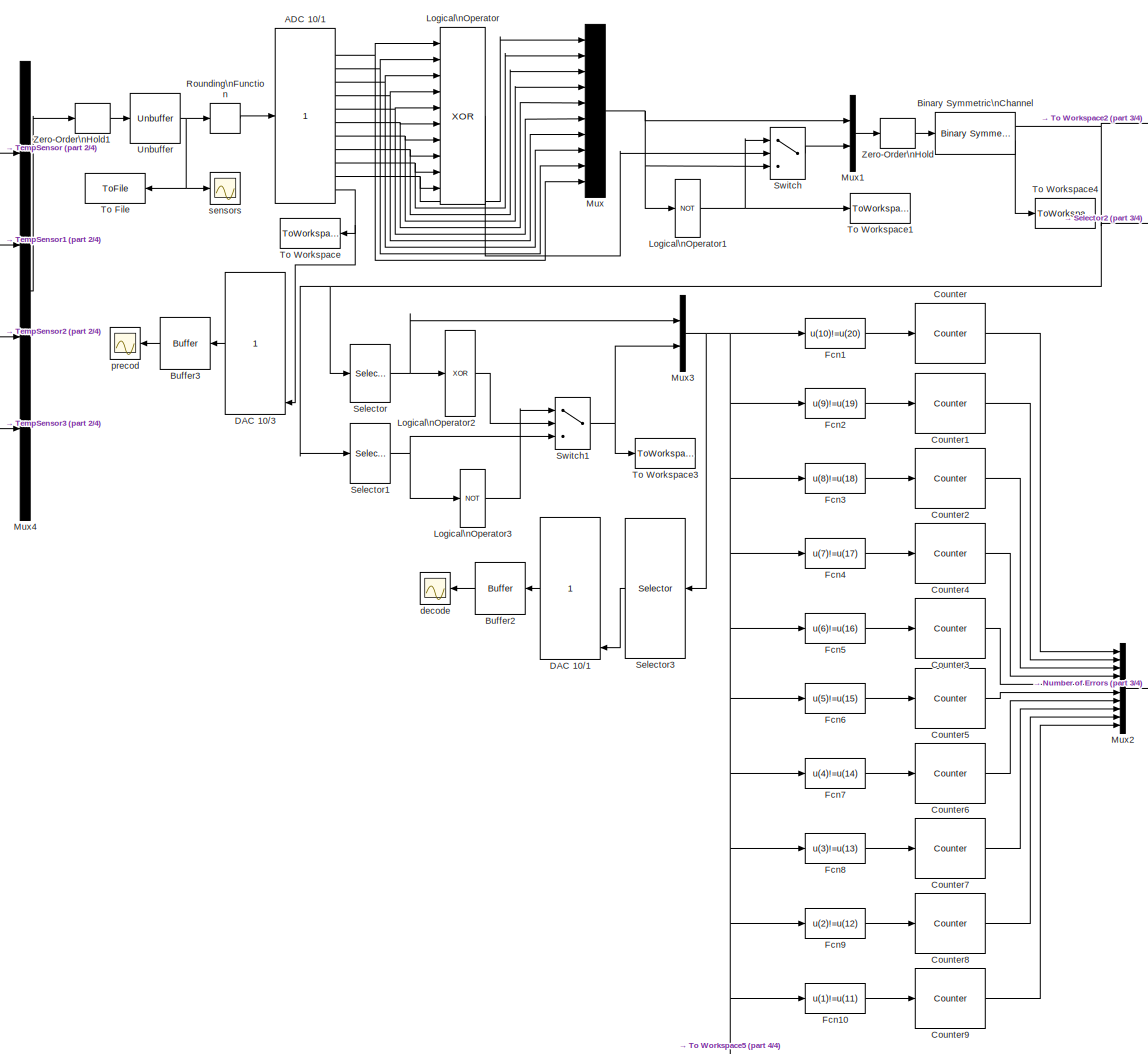
[diagram: root canvas - part 1/4, most of the canvas]
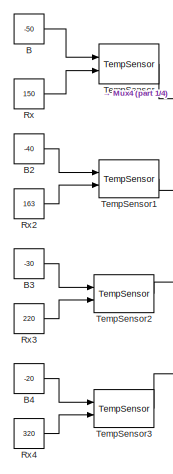
[diagram: root canvas - part 2/4, top left region]
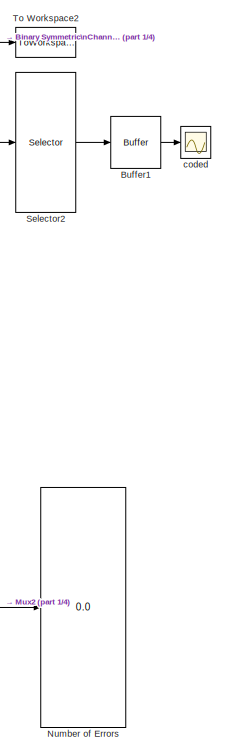
[diagram: root canvas - part 3/4, middle right region]
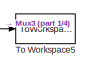
[diagram: root canvas - part 4/4, bottom center region]
MODEL UK_UD
KIND model
BLOCK [Reference] ADC 10//1  REF=KP/ADC 10//1
  Ports = [1, 12]
  SID = 48
  SourceBlock = KP/ADC 10//1
  SourceType = SubSystem
BLOCK [Constant] B
  SID = 2
  Value = -50
BLOCK [Constant] B2
  SID = 50
  SampleTime = 0
  Value = -40
BLOCK [Constant] B3
  SID = 51
  SampleTime = 0
  Value = -30
BLOCK [Constant] B4
  SID = 52
  SampleTime = 0
  Value = -20
BLOCK [Reference] Binary Symmetric\nChannel  REF=commchan3/Binary Symmetric\nChannel
  E = on
  P = 0.06
  Ports = [1, 2]
  SID = 3
  SourceBlock = commchan3/Binary Symmetric\nChannel
  SourceType = Binary Symmetric Channel
  outDtype = double
  s = 2137
BLOCK [Buffer] Buffer1
  N = 4
  OutputFrames = off
  SID = 85
  TreatMby1Signals = One channel
BLOCK [Buffer] Buffer2
  N = 4
  OutputFrames = off
  SID = 77
  TreatMby1Signals = One channel
BLOCK [Buffer] Buffer3
  N = 4
  OutputFrames = off
  SID = 90
  TreatMby1Signals = One channel
BLOCK [Reference] Counter  REF=dspswit3/Counter
  CntDtype = double
  CountEvent = Non-zero sample
  CounterSize = User defined
  Direction = Up
  HitDtype = Logical
  HitValue = 32
  InitialCount = 0
  MaxCount = 255
  Output = Count
  Ports = [1, 1]
  ResetInput = off
  SID = 4
  SamplesPerFrame = 1
  SourceBlock = dspswit3/Counter
  SourceType = Counter
  Ts = 1
BLOCK [Reference] Counter1  REF=dspswit3/Counter
  CntDtype = double
  CountEvent = Non-zero sample
  CounterSize = User defined
  Direction = Up
  HitDtype = Logical
  HitValue = 32
  InitialCount = 0
  MaxCount = 255
  Output = Count
  Ports = [1, 1]
  ResetInput = off
  SID = 5
  SamplesPerFrame = 1
  SourceBlock = dspswit3/Counter
  SourceType = Counter
  Ts = 1
BLOCK [Reference] Counter2  REF=dspswit3/Counter
  CntDtype = double
  CountEvent = Non-zero sample
  CounterSize = User defined
  Direction = Up
  HitDtype = Logical
  HitValue = 32
  InitialCount = 0
  MaxCount = 255
  Output = Count
  Ports = [1, 1]
  ResetInput = off
  SID = 6
  SamplesPerFrame = 1
  SourceBlock = dspswit3/Counter
  SourceType = Counter
  Ts = 1
BLOCK [Reference] Counter3  REF=dspswit3/Counter
  CntDtype = double
  CountEvent = Non-zero sample
  CounterSize = User defined
  Direction = Up
  HitDtype = Logical
  HitValue = 32
  InitialCount = 0
  MaxCount = 255
  Output = Count
  Ports = [1, 1]
  ResetInput = off
  SID = 7
  SamplesPerFrame = 1
  SourceBlock = dspswit3/Counter
  SourceType = Counter
  Ts = 1
BLOCK [Reference] Counter4  REF=dspswit3/Counter
  CntDtype = double
  CountEvent = Non-zero sample
  CounterSize = User defined
  Direction = Up
  HitDtype = Logical
  HitValue = 32
  InitialCount = 0
  MaxCount = 255
  Output = Count
  Ports = [1, 1]
  ResetInput = off
  SID = 8
  SamplesPerFrame = 1
  SourceBlock = dspswit3/Counter
  SourceType = Counter
  Ts = 1
BLOCK [Reference] Counter5  REF=dspswit3/Counter
  CntDtype = double
  CountEvent = Non-zero sample
  CounterSize = User defined
  Direction = Up
  HitDtype = Logical
  HitValue = 32
  InitialCount = 0
  MaxCount = 255
  Output = Count
  Ports = [1, 1]
  ResetInput = off
  SID = 9
  SamplesPerFrame = 1
  SourceBlock = dspswit3/Counter
  SourceType = Counter
  Ts = 1
BLOCK [Reference] Counter6  REF=dspswit3/Counter
  CntDtype = double
  CountEvent = Non-zero sample
  CounterSize = User defined
  Direction = Up
  HitDtype = Logical
  HitValue = 32
  InitialCount = 0
  MaxCount = 255
  Output = Count
  Ports = [1, 1]
  ResetInput = off
  SID = 10
  SamplesPerFrame = 1
  SourceBlock = dspswit3/Counter
  SourceType = Counter
  Ts = 1
BLOCK [Reference] Counter7  REF=dspswit3/Counter
  CntDtype = double
  CountEvent = Non-zero sample
  CounterSize = User defined
  Direction = Up
  HitDtype = Logical
  HitValue = 32
  InitialCount = 0
  MaxCount = 255
  Output = Count
  Ports = [1, 1]
  ResetInput = off
  SID = 11
  SamplesPerFrame = 1
  SourceBlock = dspswit3/Counter
  SourceType = Counter
  Ts = 1
BLOCK [Reference] Counter8  REF=dspswit3/Counter
  CntDtype = double
  CountEvent = Non-zero sample
  CounterSize = User defined
  Direction = Up
  HitDtype = Logical
  HitValue = 32
  InitialCount = 0
  MaxCount = 255
  Output = Count
  Ports = [1, 1]
  ResetInput = off
  SID = 12
  SamplesPerFrame = 1
  SourceBlock = dspswit3/Counter
  SourceType = Counter
  Ts = 1
BLOCK [Reference] Counter9  REF=dspswit3/Counter
  CntDtype = double
  CountEvent = Non-zero sample
  CounterSize = User defined
  Direction = Up
  HitDtype = Logical
  HitValue = 32
  InitialCount = 0
  MaxCount = 255
  Output = Count
  Ports = [1, 1]
  ResetInput = off
  SID = 13
  SamplesPerFrame = 1
  SourceBlock = dspswit3/Counter
  SourceType = Counter
  Ts = 1
BLOCK [Reference] DAC 10//1  REF=KP/DAC 10//1
  Ports = [11, 1]
  SID = 78
  SourceBlock = KP/DAC 10//1
  SourceType = SubSystem
BLOCK [Reference] DAC 10//3  REF=KP/DAC 10//1
  Ports = [11, 1]
  SID = 91
  SourceBlock = KP/DAC 10//1
  SourceType = SubSystem
BLOCK [Fcn] Fcn1
  Expr = u(10)!=u(20)
  SID = 19
BLOCK [Fcn] Fcn10
  Expr = u(1)!=u(11)
  SID = 15
BLOCK [Fcn] Fcn2
  Expr = u(9)!=u(19)
  SID = 20
BLOCK [Fcn] Fcn3
  Expr = u(8)!=u(18)
  SID = 14
BLOCK [Fcn] Fcn4
  Expr = u(7)!=u(17)
  SID = 16
BLOCK [Fcn] Fcn5
  Expr = u(6)!=u(16)
  SID = 21
BLOCK [Fcn] Fcn6
  Expr = u(5)!=u(15)
  SID = 22
BLOCK [Fcn] Fcn7
  Expr = u(4)!=u(14)
  SID = 17
BLOCK [Fcn] Fcn8
  Expr = u(3)!=u(13)
  SID = 18
BLOCK [Fcn] Fcn9
  Expr = u(2)!=u(12)
  SID = 23
BLOCK [Logic] Logical\nOperator
  Inputs = 10
  Operator = XOR
  Ports = [10, 1]
  SID = 24
BLOCK [Logic] Logical\nOperator1
  Inputs = 4
  Operator = NOT
  Ports = [1, 1]
  SID = 25
BLOCK [Logic] Logical\nOperator2
  Inputs = 1
  Operator = XOR
  Ports = [1, 1]
  SID = 26
BLOCK [Logic] Logical\nOperator3
  Inputs = 4
  Operator = NOT
  Ports = [1, 1]
  SID = 27
BLOCK [Mux] Mux
  DisplayOption = bar
  Inputs = 10
  Ports = [10, 1]
  SID = 28
BLOCK [Mux] Mux1
  DisplayOption = bar
  Inputs = 2
  Ports = [2, 1]
  SID = 29
BLOCK [Mux] Mux2
  DisplayOption = bar
  Inputs = 10
  Ports = [10, 1]
  SID = 30
BLOCK [Mux] Mux3
  DisplayOption = bar
  Inputs = 2
  Ports = [2, 1]
  SID = 31
BLOCK [Mux] Mux4
  DisplayOption = bar
  Ports = [4, 1]
  SID = 59
BLOCK [Display] Number of Errors
  Decimation = 1
  Ports = [1]
  SID = 32
BLOCK [Rounding] Rounding\nFunction
  Operator = round
  SID = 33
BLOCK [Constant] Rx
  SID = 34
  Value = 150
BLOCK [Constant] Rx2
  SID = 53
  SampleTime = 0
  Value = 163
BLOCK [Constant] Rx3
  SID = 54
  SampleTime = 0
  Value = 220
BLOCK [Constant] Rx4
  SID = 55
  SampleTime = 0
  Value = 320
BLOCK [Selector] Selector
  IndexOptions = Index vector (dialog)
  Indices = [1 2 3 4 5 6 7 8 9 10]
  InputPortWidth = 20
  OutputSizes = 1
  Ports = [1, 1]
  SID = 36
BLOCK [Selector] Selector1
  IndexOptions = Index vector (dialog)
  Indices = [11 12 13 14 15 16 17 18 19 20]
  InputPortWidth = 20
  OutputSizes = 1
  Ports = [1, 1]
  SID = 37
BLOCK [Selector] Selector2
  IndexOptions = Index vector (dialog)
  Indices = [1 2 3 4 5 6 7 8 9 10]
  InputPortWidth = 20
  OutputSizes = 1
  Ports = [1, 1]
  SID = 87
BLOCK [Selector] Selector3
  IndexOptions = Index vector (dialog)
  Indices = [1 2 3 4 5 6 7 8 9 10]
  InputPortWidth = 20
  OutputSizes = 1
  Ports = [1, 1]
  SID = 82
BLOCK [Switch] Switch
  SID = 38
  Threshold = 1
BLOCK [Switch] Switch1
  SID = 39
  Threshold = 1
BLOCK [Reference] TempSensor  REF=KP/TempSensor
  Ports = [2, 1]
  SID = 47
  SourceBlock = KP/TempSensor
  SourceType = SubSystem
BLOCK [Reference] TempSensor1  REF=KP/TempSensor
  Ports = [2, 1]
  SID = 56
  SourceBlock = KP/TempSensor
  SourceType = SubSystem
BLOCK [Reference] TempSensor2  REF=KP/TempSensor
  Ports = [2, 1]
  SID = 57
  SourceBlock = KP/TempSensor
  SourceType = SubSystem
BLOCK [Reference] TempSensor3  REF=KP/TempSensor
  Ports = [2, 1]
  SID = 58
  SourceBlock = KP/TempSensor
  SourceType = SubSystem
BLOCK [ToFile] To File
  Filename = sensors.mat
  Ports = [1]
  SID = 93
BLOCK [ToWorkspace] To Workspace
  MaxDataPoints = inf
  Ports = [1]
  SID = 41
  SampleTime = -1
  VariableName = precod
BLOCK [ToWorkspace] To Workspace1
  MaxDataPoints = inf
  Ports = [1]
  SID = 42
  SampleTime = -1
  VariableName = precod1
BLOCK [ToWorkspace] To Workspace2
  MaxDataPoints = inf
  Ports = [1]
  SID = 43
  SampleTime = -1
  VariableName = coded
BLOCK [ToWorkspace] To Workspace3
  MaxDataPoints = inf
  Ports = [1]
  SID = 44
  SampleTime = -1
  VariableName = coded1
BLOCK [ToWorkspace] To Workspace4
  MaxDataPoints = inf
  Ports = [1]
  SID = 45
  SampleTime = -1
  VariableName = err
BLOCK [ToWorkspace] To Workspace5
  MaxDataPoints = inf
  Ports = [1]
  SID = 46
  SampleTime = -1
  VariableName = coded2
BLOCK [Unbuffer] Unbuffer
  Ports = [1, 1]
  SID = 62
  SampleBasedProcessing = Same as frame based
  ic = 4
BLOCK [ZeroOrderHold] Zero-Order\nHold
  SID = 49
BLOCK [ZeroOrderHold] Zero-Order\nHold1
  SID = 63
BLOCK [Scope] coded
  Ports = [1]
  SID = 88
  ScopeSpecificationString = Simulink.scopes.TimeScopeBlockCfg('CurrentConfiguration', extmgr.ConfigurationSet(extmgr.Configuration('Core','General UI',true),extmgr.Configuration('Core','Source UI',true),extmgr.Configuration('Sources','WiredSimulink',true,'DataLoggingVariableName','ScopeData2'),extmgr.Configuration('Visuals','Time Domain',true,'SerializedDisplays',{struct('MinYLimReal','-0.125','MaxYLimReal','1.125','YLabelRe...<+1419ch>
BLOCK [Scope] decode
  Ports = [1]
  SID = 80
  ScopeSpecificationString = Simulink.scopes.TimeScopeBlockCfg('CurrentConfiguration', extmgr.ConfigurationSet(extmgr.Configuration('Core','General UI',true),extmgr.Configuration('Core','Source UI',true),extmgr.Configuration('Sources','WiredSimulink',true,'DataLoggingVariableName','ScopeData3'),extmgr.Configuration('Visuals','Time Domain',true,'SerializedDisplays',{struct('MinYLimReal','-96.25','MaxYLimReal','866.25','YLabelR...<+1423ch>
BLOCK [Scope] precod
  Ports = [1]
  SID = 92
  ScopeSpecificationString = Simulink.scopes.TimeScopeBlockCfg('CurrentConfiguration', extmgr.ConfigurationSet(extmgr.Configuration('Core','General UI',true),extmgr.Configuration('Core','Source UI',true),extmgr.Configuration('Sources','WiredSimulink',true,'DataLoggingVariableName','ScopeData4'),extmgr.Configuration('Visuals','Time Domain',true,'SerializedDisplays',{struct('MinYLimReal','-0.375','MaxYLimReal','3.375','YLabelRe...<+1419ch>
BLOCK [Scope] sensors
  Ports = [1]
  SID = 35
  ScopeSpecificationString = Simulink.scopes.TimeScopeBlockCfg('CurrentConfiguration', extmgr.ConfigurationSet(extmgr.Configuration('Core','General UI',true),extmgr.Configuration('Core','Source UI',true),extmgr.Configuration('Sources','WiredSimulink',true,'DataLoggingSaveFormat','StructureWithTime','DataLoggingLimitDataPoints',true,'DataLoggingDecimation','1','DataLoggingDecimateData',true),extmgr.Configuration('Visuals','Tim...<+1702ch>
NET ADC 10//1:10 -> Logical\nOperator:9, Mux:2
NET ADC 10//1:11 -> Logical\nOperator:10, Mux:1
NET ADC 10//1:12 -> DAC 10//3:11, To Workspace:1
NET ADC 10//1:2 -> Logical\nOperator:1, Mux:10
NET ADC 10//1:3 -> Logical\nOperator:2, Mux:9
NET ADC 10//1:4 -> Logical\nOperator:3, Mux:8
NET ADC 10//1:5 -> Logical\nOperator:4, Mux:7
NET ADC 10//1:6 -> Logical\nOperator:5, Mux:6
NET ADC 10//1:7 -> Logical\nOperator:6, Mux:5
NET ADC 10//1:8 -> Logical\nOperator:7, Mux:4
NET ADC 10//1:9 -> Logical\nOperator:8, Mux:3
LINE B2:1 -> TempSensor1:1
LINE B3:1 -> TempSensor2:1
LINE B4:1 -> TempSensor3:1
LINE B:1 -> TempSensor:1
NET Binary Symmetric\nChannel:1 -> Selector1:1, Selector2:1, Selector:1, To Workspace2:1
LINE Binary Symmetric\nChannel:2 -> To Workspace4:1
LINE Buffer1:1 -> coded:1
LINE Buffer2:1 -> decode:1
LINE Buffer3:1 -> precod:1
LINE Counter1:1 -> Mux2:2
LINE Counter2:1 -> Mux2:3
LINE Counter3:1 -> Mux2:5
LINE Counter4:1 -> Mux2:4
LINE Counter5:1 -> Mux2:6
LINE Counter6:1 -> Mux2:7
LINE Counter7:1 -> Mux2:8
LINE Counter8:1 -> Mux2:9
LINE Counter9:1 -> Mux2:10
LINE Counter:1 -> Mux2:1
LINE DAC 10//1:1 -> Buffer2:1
LINE DAC 10//3:1 -> Buffer3:1
LINE Fcn10:1 -> Counter9:1
LINE Fcn1:1 -> Counter:1
LINE Fcn2:1 -> Counter1:1
LINE Fcn3:1 -> Counter2:1
LINE Fcn4:1 -> Counter4:1
LINE Fcn5:1 -> Counter3:1
LINE Fcn6:1 -> Counter5:1
LINE Fcn7:1 -> Counter6:1
LINE Fcn8:1 -> Counter7:1
LINE Fcn9:1 -> Counter8:1
NET Logical\nOperator1:1 -> Switch:1, To Workspace1:1
LINE Logical\nOperator2:1 -> Switch1:2
LINE Logical\nOperator3:1 -> Switch1:1
LINE Logical\nOperator:1 -> Switch:2
LINE Mux1:1 -> Zero-Order\nHold:1
LINE Mux2:1 -> Number of Errors:1
NET Mux3:1 -> Fcn10:1, Fcn1:1, Fcn2:1, Fcn3:1, Fcn4:1, Fcn5:1, Fcn6:1, Fcn7:1, Fcn8:1, Fcn9:1, Selector3:1, To Workspace5:1
LINE Mux4:1 -> Zero-Order\nHold1:1
NET Mux:1 -> Logical\nOperator1:1, Mux1:1, Switch:3
LINE Rounding\nFunction:1 -> ADC 10//1:1
LINE Rx2:1 -> TempSensor1:2
LINE Rx3:1 -> TempSensor2:2
LINE Rx4:1 -> TempSensor3:2
LINE Rx:1 -> TempSensor:2
NET Selector1:1 -> Logical\nOperator3:1, Switch1:3
LINE Selector2:1 -> Buffer1:1
LINE Selector3:1 -> DAC 10//1:11
NET Selector:1 -> Logical\nOperator2:1, Mux3:1
NET Switch1:1 -> Mux3:2, To Workspace3:1
LINE Switch:1 -> Mux1:2
LINE TempSensor1:1 -> Mux4:2
LINE TempSensor2:1 -> Mux4:3
LINE TempSensor3:1 -> Mux4:4
LINE TempSensor:1 -> Mux4:1
NET Unbuffer:1 -> Rounding\nFunction:1, To File:1, sensors:1
LINE Zero-Order\nHold1:1 -> Unbuffer:1
LINE Zero-Order\nHold:1 -> Binary Symmetric\nChannel:1
note: NET lines group one-source signal fan-out (src -> all destinations, sorted); 1:1 wires keep LINE
